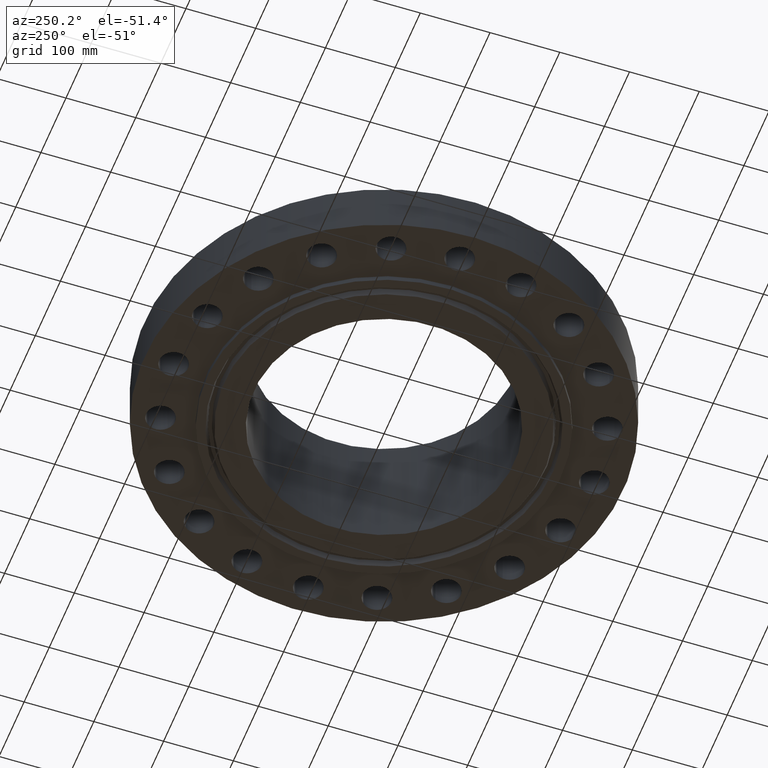
[diagram: clean part render]
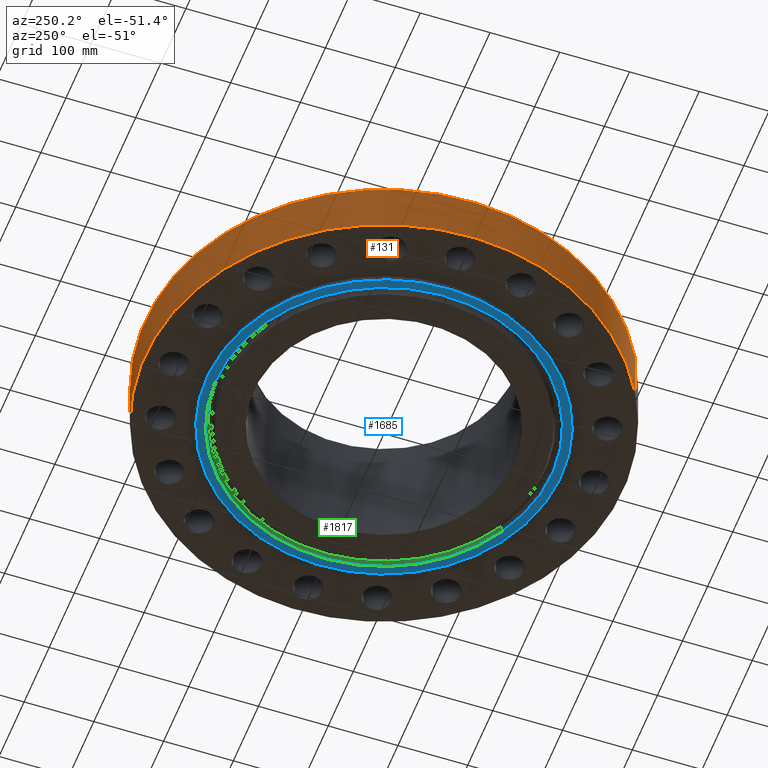
[diagram: same view with three faces highlighted in distinct colors, each labeled with its STEP entity id]
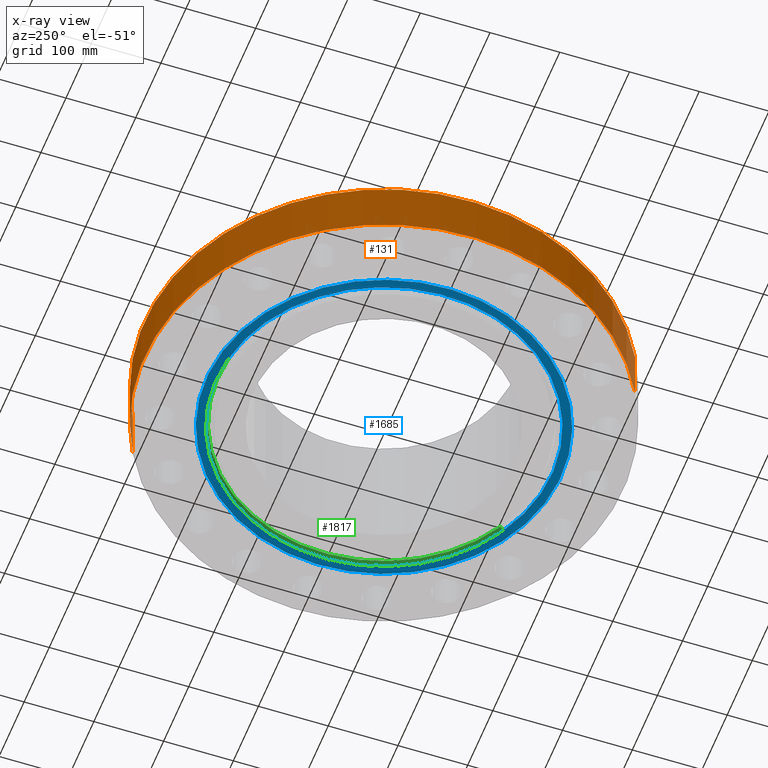
[diagram: x-ray of the same camera — body ghosted, the three highlighted faces saturated]
A machine part, auxiliary view with three faces highlighted in distinct colors.
The next image is the same camera in x-ray (body ghosted, the three faces saturated) — at least one of them is partly hidden behind the body in this view.
Their STEP definitions:

[orange] entity #131 — the highlighted cylindrical surface (partial cylindrical patch) has radius 342.9 mm, axis along (0, 0, -1).
#95=AXIS2_PLACEMENT_3D('Cylinder Axis2P3D',#92,#93,#94) ;
#99=AXIS2_PLACEMENT_3D('Circle Axis2P3D',#97,#98,$) ;
#115=AXIS2_PLACEMENT_3D('Circle Axis2P3D',#113,#114,$) ;
#92=CARTESIAN_POINT('Axis2P3D Location',(0.,0.,3.34350000001)) ;
#97=CARTESIAN_POINT('Axis2P3D Location',(0.,0.,1.67844740731E-015)) ;
#101=CARTESIAN_POINT('Vertex',(-6.47224477118,-11.8473645856,1.67844740731E-015)) ;
#103=CARTESIAN_POINT('Vertex',(6.47224477118,11.8473645856,1.67844740731E-015)) ;
#106=CARTESIAN_POINT('Line Origine',(-6.47224477118,-11.8473645856,1.50000000001)) ;
#110=CARTESIAN_POINT('Vertex',(-6.47224477118,-11.8473645856,3.00000000001)) ;
#113=CARTESIAN_POINT('Axis2P3D Location',(0.,0.,3.00000000001)) ;
#117=CARTESIAN_POINT('Vertex',(6.47224477118,11.8473645856,3.00000000001)) ;
#120=CARTESIAN_POINT('Line Origine',(6.47224477118,11.8473645856,1.50000000001)) ;
#93=DIRECTION('Axis2P3D Direction',(0.,0.,-0.0393700787402)) ;
#94=DIRECTION('Axis2P3D XDirection',(0.0188750212049,0.0345504945626,0.)) ;
#98=DIRECTION('Axis2P3D Direction',(0.,0.,-0.0393700787402)) ;
#107=DIRECTION('Vector Direction',(0.,0.,-0.0393700787402)) ;
#114=DIRECTION('Axis2P3D Direction',(0.,0.,-0.0393700787402)) ;
#121=DIRECTION('Vector Direction',(0.,0.,-0.0393700787402)) ;
#108=VECTOR('Line Direction',#107,0.0393700787402) ;
#122=VECTOR('Line Direction',#121,0.0393700787402) ;
#126=ORIENTED_EDGE('',*,*,#105,.F.) ;
#127=ORIENTED_EDGE('',*,*,#112,.T.) ;
#128=ORIENTED_EDGE('',*,*,#119,.T.) ;
#129=ORIENTED_EDGE('',*,*,#124,.F.) ;
#131=ADVANCED_FACE('PartBody',(#130),#96,.T.) ;
#100=CIRCLE('generated circle',#99,13.5000000001) ;
#116=CIRCLE('generated circle',#115,13.5000000001) ;
#96=CYLINDRICAL_SURFACE('generated cylinder',#95,13.5000000001) ;
#105=EDGE_CURVE('',#102,#104,#100,.T.) ;
#112=EDGE_CURVE('',#102,#111,#109,.F.) ;
#119=EDGE_CURVE('',#111,#118,#116,.T.) ;
#124=EDGE_CURVE('',#104,#118,#123,.F.) ;
#125=EDGE_LOOP('',(#126,#127,#128,#129)) ;
#130=FACE_OUTER_BOUND('',#125,.T.) ;
#109=LINE('Line',#106,#108) ;
#123=LINE('Line',#120,#122) ;
#102=VERTEX_POINT('',#101) ;
#104=VERTEX_POINT('',#103) ;
#111=VERTEX_POINT('',#110) ;
#118=VERTEX_POINT('',#117) ;

[blue] entity #1685 — the highlighted planar face has unit normal (0, 0, -1).
#431=AXIS2_PLACEMENT_3D('Circle Axis2P3D',#429,#430,$) ;
#466=AXIS2_PLACEMENT_3D('Circle Axis2P3D',#464,#465,$) ;
#1661=AXIS2_PLACEMENT_3D('Plane Axis2P3D',#1658,#1659,#1660) ;
#1669=AXIS2_PLACEMENT_3D('Circle Axis2P3D',#1667,#1668,$) ;
#1678=AXIS2_PLACEMENT_3D('Circle Axis2P3D',#1676,#1677,$) ;
#429=CARTESIAN_POINT('Axis2P3D Location',(0.,0.,-0.313000000001)) ;
#433=CARTESIAN_POINT('Vertex',(-4.79425538606,-8.77582561894,-0.313000000001)) ;
#435=CARTESIAN_POINT('Vertex',(4.79425538606,8.77582561894,-0.313000000001)) ;
#464=CARTESIAN_POINT('Axis2P3D Location',(0.,0.,-0.313000000001)) ;
#1658=CARTESIAN_POINT('Axis2P3D Location',(0.,7.34400000003,-0.313000000001)) ;
#1667=CARTESIAN_POINT('Axis2P3D Location',(-8.39223703654E-016,-3.35689481461E-015,-0.313000000001)) ;
#1671=CARTESIAN_POINT('Vertex',(4.54711152091,-8.32343180828,-0.313000000001)) ;
#1673=CARTESIAN_POINT('Vertex',(-4.54711152091,8.32343180828,-0.313000000001)) ;
#1676=CARTESIAN_POINT('Axis2P3D Location',(-2.79741234551E-016,1.1189649382E-015,-0.313000000001)) ;
#430=DIRECTION('Axis2P3D Direction',(0.,0.,-0.0393700787402)) ;
#465=DIRECTION('Axis2P3D Direction',(0.,0.,-0.0393700787402)) ;
#1659=DIRECTION('Axis2P3D Direction',(0.,0.,-0.0393700787402)) ;
#1660=DIRECTION('Axis2P3D XDirection',(0.0393700787402,0.,0.)) ;
#1668=DIRECTION('Axis2P3D Direction',(0.,0.,-0.0393700787402)) ;
#1677=DIRECTION('Axis2P3D Direction',(0.,0.,-0.0393700787402)) ;
#1664=ORIENTED_EDGE('',*,*,#437,.T.) ;
#1665=ORIENTED_EDGE('',*,*,#468,.T.) ;
#1682=ORIENTED_EDGE('',*,*,#1675,.F.) ;
#1683=ORIENTED_EDGE('',*,*,#1680,.F.) ;
#1684=FACE_BOUND('',#1681,.T.) ;
#1685=ADVANCED_FACE('PartBody',(#1666,#1684),#1662,.T.) ;
#432=CIRCLE('generated circle',#431,10.) ;
#467=CIRCLE('generated circle',#466,10.) ;
#1670=CIRCLE('generated circle',#1669,9.48450000004) ;
#1679=CIRCLE('generated circle',#1678,9.48450000004) ;
#437=EDGE_CURVE('',#434,#436,#432,.T.) ;
#468=EDGE_CURVE('',#436,#434,#467,.T.) ;
#1675=EDGE_CURVE('',#1672,#1674,#1670,.T.) ;
#1680=EDGE_CURVE('',#1674,#1672,#1679,.T.) ;
#1663=EDGE_LOOP('',(#1664,#1665)) ;
#1681=EDGE_LOOP('',(#1682,#1683)) ;
#1666=FACE_OUTER_BOUND('',#1663,.T.) ;
#1662=PLANE('',#1661) ;
#434=VERTEX_POINT('',#433) ;
#436=VERTEX_POINT('',#435) ;
#1672=VERTEX_POINT('',#1671) ;
#1674=VERTEX_POINT('',#1673) ;

[green] entity #1817 — the highlighted conical surface has half-angle 23 deg.
#1678=AXIS2_PLACEMENT_3D('Circle Axis2P3D',#1676,#1677,$) ;
#1752=AXIS2_PLACEMENT_3D('Cone Axis2P3D',#1749,#1750,#1751) ;
#1773=AXIS2_PLACEMENT_3D('Circle Axis2P3D',#1771,#1772,$) ;
#1671=CARTESIAN_POINT('Vertex',(4.54711152091,-8.32343180828,-0.313000000001)) ;
#1673=CARTESIAN_POINT('Vertex',(-4.54711152091,8.32343180828,-0.313000000001)) ;
#1676=CARTESIAN_POINT('Axis2P3D Location',(-2.79741234551E-016,1.1189649382E-015,-0.313000000001)) ;
#1718=CARTESIAN_POINT('Vertex',(-4.48725839732,8.21387140044,-0.0188873350169)) ;
#1720=CARTESIAN_POINT('Vertex',(4.48725839732,-8.21387140044,-0.0188873350169)) ;
#1749=CARTESIAN_POINT('Axis2P3D Location',(0.,0.,-0.0188873350169)) ;
#1754=CARTESIAN_POINT('Line Origine',(-4.51718495911,8.26865160436,-0.165943667509)) ;
#1759=CARTESIAN_POINT('Line Origine',(4.51718495911,-8.26865160436,-0.165943667509)) ;
#1771=CARTESIAN_POINT('Axis2P3D Location',(0.,0.,-0.0188873350169)) ;
#1677=DIRECTION('Axis2P3D Direction',(0.,0.,-0.0393700787402)) ;
#1750=DIRECTION('Axis2P3D Direction',(-0.,-0.,-0.0393700787402)) ;
#1751=DIRECTION('Axis2P3D XDirection',(-0.0188750212049,0.0345504945626,0.)) ;
#1755=DIRECTION('Vector Direction',(-0.00737505833565,0.0134999537303,-0.0362403485611)) ;
#1760=DIRECTION('Vector Direction',(0.00737505833565,-0.0134999537303,-0.0362403485611)) ;
#1772=DIRECTION('Axis2P3D Direction',(0.,0.,0.0393700787402)) ;
#1756=VECTOR('Line Direction',#1755,0.0393700787402) ;
#1761=VECTOR('Line Direction',#1760,0.0393700787402) ;
#1812=ORIENTED_EDGE('',*,*,#1680,.T.) ;
#1813=ORIENTED_EDGE('',*,*,#1763,.T.) ;
#1814=ORIENTED_EDGE('',*,*,#1775,.T.) ;
#1815=ORIENTED_EDGE('',*,*,#1758,.F.) ;
#1817=ADVANCED_FACE('PartBody',(#1816),#1753,.F.) ;
#1679=CIRCLE('generated circle',#1678,9.48450000004) ;
#1774=CIRCLE('generated circle',#1773,9.35965658062) ;
#1753=CONICAL_SURFACE('Cone',#1752,9.35965658062,0.401425727959) ;
#1680=EDGE_CURVE('',#1674,#1672,#1679,.T.) ;
#1758=EDGE_CURVE('',#1674,#1719,#1757,.F.) ;
#1763=EDGE_CURVE('',#1672,#1721,#1762,.F.) ;
#1775=EDGE_CURVE('',#1721,#1719,#1774,.T.) ;
#1811=EDGE_LOOP('',(#1812,#1813,#1814,#1815)) ;
#1816=FACE_OUTER_BOUND('',#1811,.T.) ;
#1757=LINE('Line',#1754,#1756) ;
#1762=LINE('Line',#1759,#1761) ;
#1672=VERTEX_POINT('',#1671) ;
#1674=VERTEX_POINT('',#1673) ;
#1719=VERTEX_POINT('',#1718) ;
#1721=VERTEX_POINT('',#1720) ;